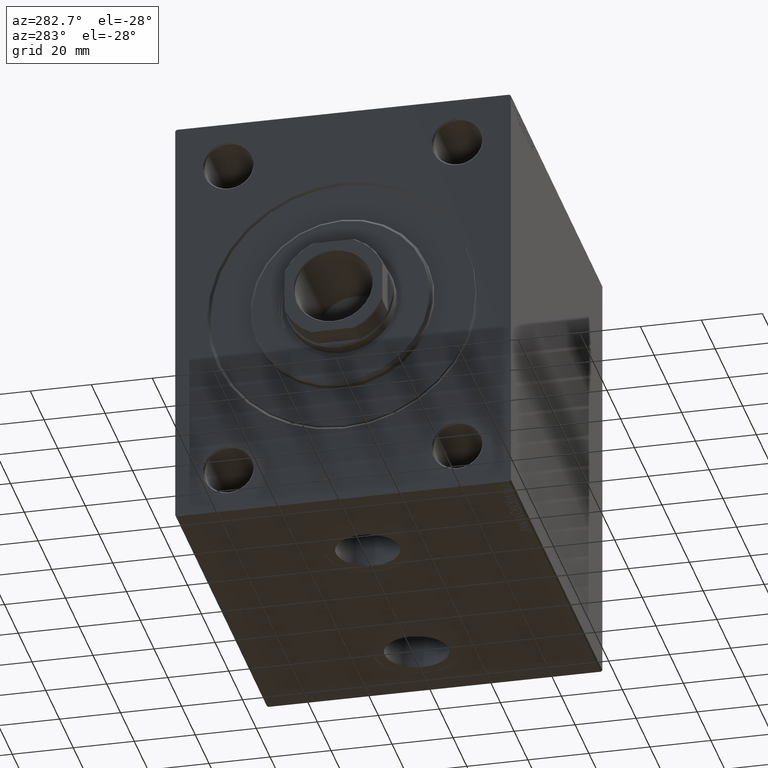
[diagram: clean part render]
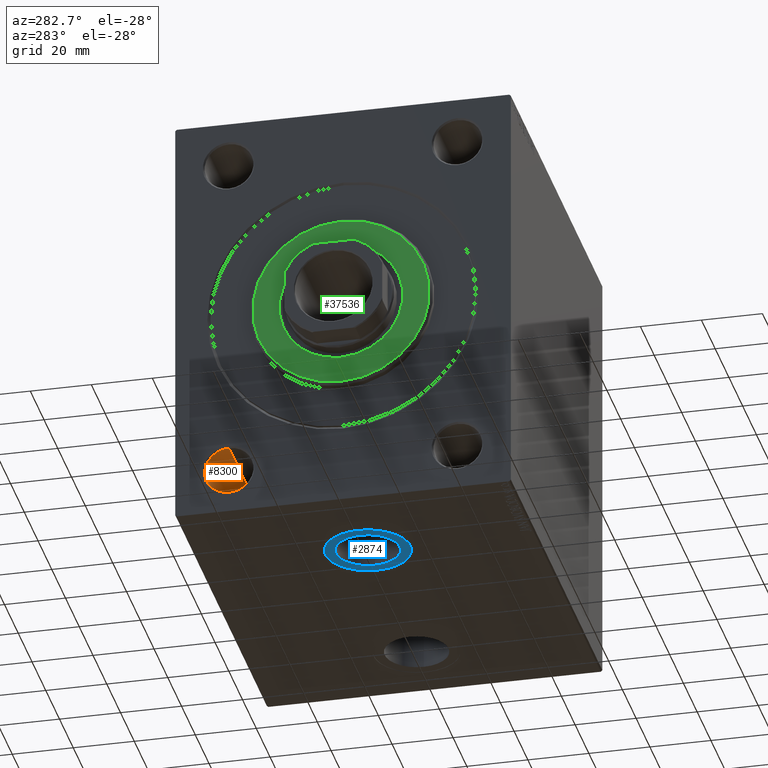
[diagram: same view with three faces highlighted in distinct colors, each labeled with its STEP entity id]
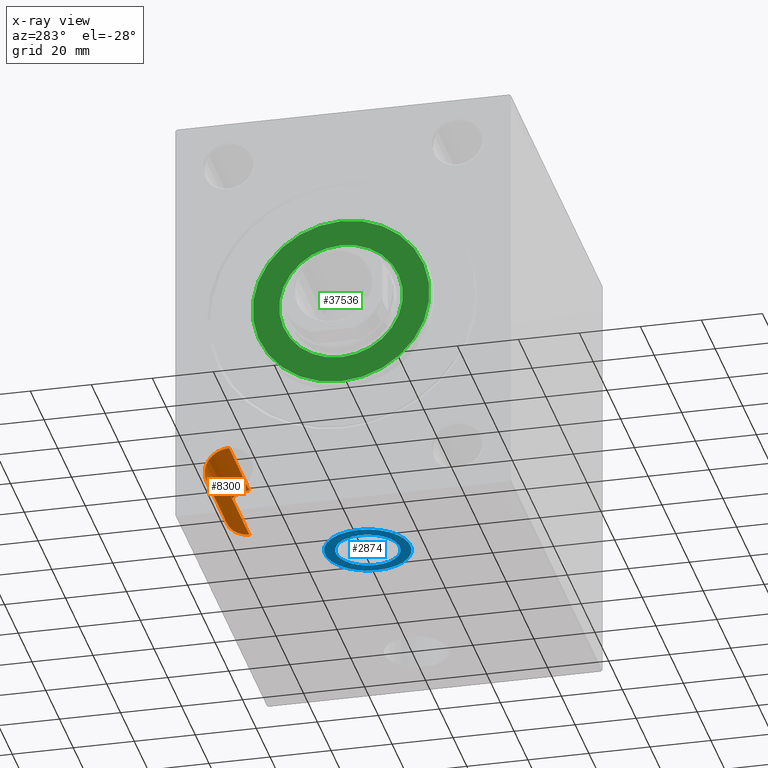
[diagram: x-ray of the same camera — body ghosted, the three highlighted faces saturated]
A machine part, auxiliary view with three faces highlighted in distinct colors.
The next image is the same camera in x-ray (body ghosted, the three faces saturated) — at least one of them is partly hidden behind the body in this view.
Their STEP definitions:

[orange] entity #8300 — the highlighted cylindrical surface (edge-blend (fillet) strip) has radius 8 mm, axis along (-1, -0, -0).
#233 = CARTESIAN_POINT ( 'NONE',  ( 0.000000000000000000, 37.50000000000000000, -47.00000000000000000 ) ) ;
#1916 = CARTESIAN_POINT ( 'NONE',  ( 0.5000000000000108802, 37.50000000000000000, -62.99999999999998579 ) ) ;
#2483 = DIRECTION ( 'NONE',  ( -1.000000000000000000, 0.000000000000000000, 0.000000000000000000 ) ) ;
#3197 = DIRECTION ( 'NONE',  ( 0.000000000000000000, 0.000000000000000000, 1.000000000000000000 ) ) ;
#4074 = DIRECTION ( 'NONE',  ( -1.000000000000000000, -0.000000000000000000, -0.000000000000000000 ) ) ;
#4101 = CARTESIAN_POINT ( 'NONE',  ( 30.00000000000000000, 37.50000000000000000, -62.99999999999998579 ) ) ;
#4639 = CARTESIAN_POINT ( 'NONE',  ( 0.000000000000000000, 37.50000000000000000, -62.99999999999998579 ) ) ;
#6309 = CIRCLE ( 'NONE', #17374, 7.999999999999992895 ) ;
#6699 = EDGE_CURVE ( 'NONE', #13617, #15246, #41845, .T. ) ;
#8300 = ADVANCED_FACE ( 'NONE', ( #21205 ), #39419, .F. ) ;
#9588 = ORIENTED_EDGE ( 'NONE', *, *, #25648, .F. ) ;
#10340 = DIRECTION ( 'NONE',  ( 0.000000000000000000, 0.000000000000000000, 1.000000000000000000 ) ) ;
#13593 = DIRECTION ( 'NONE',  ( -1.000000000000000000, -0.000000000000000000, -0.000000000000000000 ) ) ;
#13617 = VERTEX_POINT ( 'NONE', #43868 ) ;
#15246 = VERTEX_POINT ( 'NONE', #44846 ) ;
#15487 = VECTOR ( 'NONE', #15946, 1000.000000000000000 ) ;
#15946 = DIRECTION ( 'NONE',  ( -1.000000000000000000, -0.000000000000000000, -0.000000000000000000 ) ) ;
#16432 = VERTEX_POINT ( 'NONE', #4101 ) ;
#17176 = ORIENTED_EDGE ( 'NONE', *, *, #40708, .F. ) ;
#17374 = AXIS2_PLACEMENT_3D ( 'NONE', #38769, #13593, #3197 ) ;
#19630 = VECTOR ( 'NONE', #24314, 1000.000000000000000 ) ;
#21205 = FACE_OUTER_BOUND ( 'NONE', #25891, .T. ) ;
#21651 = CARTESIAN_POINT ( 'NONE',  ( 0.000000000000000000, 37.50000000000000000, -54.99999999999999289 ) ) ;
#23986 = CIRCLE ( 'NONE', #36493, 7.999999999999992895 ) ;
#24140 = AXIS2_PLACEMENT_3D ( 'NONE', #21651, #4074, #10340 ) ;
#24314 = DIRECTION ( 'NONE',  ( -1.000000000000000000, -0.000000000000000000, -0.000000000000000000 ) ) ;
#25648 = EDGE_CURVE ( 'NONE', #16432, #31095, #33519, .T. ) ;
#25891 = EDGE_LOOP ( 'NONE', ( #9588, #17176, #29725, #32936 ) ) ;
#29725 = ORIENTED_EDGE ( 'NONE', *, *, #6699, .T. ) ;
#31095 = VERTEX_POINT ( 'NONE', #1916 ) ;
#32936 = ORIENTED_EDGE ( 'NONE', *, *, #37859, .T. ) ;
#33519 = LINE ( 'NONE', #4639, #15487 ) ;
#34618 = DIRECTION ( 'NONE',  ( 0.000000000000000000, 0.000000000000000000, -1.000000000000000000 ) ) ;
#36493 = AXIS2_PLACEMENT_3D ( 'NONE', #45225, #2483, #34618 ) ;
#37859 = EDGE_CURVE ( 'NONE', #15246, #31095, #23986, .T. ) ;
#38769 = CARTESIAN_POINT ( 'NONE',  ( 30.00000000000000000, 37.50000000000000000, -54.99999999999999289 ) ) ;
#39419 = CYLINDRICAL_SURFACE ( 'NONE', #24140, 7.999999999999992895 ) ;
#40708 = EDGE_CURVE ( 'NONE', #13617, #16432, #6309, .T. ) ;
#41845 = LINE ( 'NONE', #233, #19630 ) ;
#43868 = CARTESIAN_POINT ( 'NONE',  ( 30.00000000000000000, 37.50000000000000000, -47.00000000000000000 ) ) ;
#44846 = CARTESIAN_POINT ( 'NONE',  ( 0.5000000000000108802, 37.50000000000000000, -47.00000000000000000 ) ) ;
#45225 = CARTESIAN_POINT ( 'NONE',  ( 0.5000000000000108802, 37.50000000000000000, -54.99999999999999289 ) ) ;

[blue] entity #2874 — the highlighted planar face has unit normal (0, 0, -1).
#1778 = AXIS2_PLACEMENT_3D ( 'NONE', #45741, #42263, #10622 ) ;
#2874 = ADVANCED_FACE ( 'NONE', ( #4365, #35127 ), #31663, .T. ) ;
#4365 = FACE_BOUND ( 'NONE', #5131, .T. ) ;
#4375 = AXIS2_PLACEMENT_3D ( 'NONE', #39265, #35367, #11767 ) ;
#5131 = EDGE_LOOP ( 'NONE', ( #33396, #15231 ) ) ;
#7021 = ORIENTED_EDGE ( 'NONE', *, *, #18941, .T. ) ;
#8370 = VERTEX_POINT ( 'NONE', #8904 ) ;
#8449 = VERTEX_POINT ( 'NONE', #15835 ) ;
#8893 = AXIS2_PLACEMENT_3D ( 'NONE', #32104, #35794, #17543 ) ;
#8904 = CARTESIAN_POINT ( 'NONE',  ( 46.47999999999999687, 5.489560609482857396E-15, -69.90000000000000568 ) ) ;
#10622 = DIRECTION ( 'NONE',  ( -1.000000000000000000, 0.000000000000000000, -0.000000000000000000 ) ) ;
#11767 = DIRECTION ( 'NONE',  ( -1.000000000000000000, 0.000000000000000000, 0.000000000000000000 ) ) ;
#13222 = CIRCLE ( 'NONE', #4375, 10.48000000000000043 ) ;
#14253 = CARTESIAN_POINT ( 'NONE',  ( 25.51999999999999602, 4.206130763976431907E-15, -69.90000000000000568 ) ) ;
#15231 = ORIENTED_EDGE ( 'NONE', *, *, #45693, .F. ) ;
#15835 = CARTESIAN_POINT ( 'NONE',  ( 22.00000000000000000, 4.206130763976431907E-15, -69.90000000000000568 ) ) ;
#17543 = DIRECTION ( 'NONE',  ( -1.000000000000000000, 0.000000000000000000, 0.000000000000000000 ) ) ;
#18941 = EDGE_CURVE ( 'NONE', #8449, #45475, #37574, .T. ) ;
#19011 = AXIS2_PLACEMENT_3D ( 'NONE', #25779, #19285, #22768 ) ;
#19285 = DIRECTION ( 'NONE',  ( 0.000000000000000000, 0.000000000000000000, -1.000000000000000000 ) ) ;
#19784 = EDGE_CURVE ( 'NONE', #36203, #8370, #13222, .T. ) ;
#20529 = DIRECTION ( 'NONE',  ( 0.000000000000000000, 0.000000000000000000, -1.000000000000000000 ) ) ;
#22606 = ORIENTED_EDGE ( 'NONE', *, *, #23112, .T. ) ;
#22768 = DIRECTION ( 'NONE',  ( -1.000000000000000000, 0.000000000000000000, 0.000000000000000000 ) ) ;
#23112 = EDGE_CURVE ( 'NONE', #45475, #8449, #34742, .T. ) ;
#24427 = CARTESIAN_POINT ( 'NONE',  ( 50.00000000000000000, 5.920636282782727137E-15, -69.90000000000000568 ) ) ;
#25779 = CARTESIAN_POINT ( 'NONE',  ( 36.00000000000000000, 4.206130763976431907E-15, -69.90000000000000568 ) ) ;
#31663 = PLANE ( 'NONE',  #1778 ) ;
#32104 = CARTESIAN_POINT ( 'NONE',  ( 36.00000000000000000, 4.206130763976431907E-15, -69.90000000000000568 ) ) ;
#33396 = ORIENTED_EDGE ( 'NONE', *, *, #19784, .F. ) ;
#33928 = DIRECTION ( 'NONE',  ( -1.000000000000000000, 0.000000000000000000, 0.000000000000000000 ) ) ;
#34742 = CIRCLE ( 'NONE', #8893, 13.99999999999999822 ) ;
#35127 = FACE_OUTER_BOUND ( 'NONE', #36892, .T. ) ;
#35367 = DIRECTION ( 'NONE',  ( 0.000000000000000000, 0.000000000000000000, -1.000000000000000000 ) ) ;
#35794 = DIRECTION ( 'NONE',  ( 0.000000000000000000, 0.000000000000000000, -1.000000000000000000 ) ) ;
#36203 = VERTEX_POINT ( 'NONE', #14253 ) ;
#36892 = EDGE_LOOP ( 'NONE', ( #7021, #22606 ) ) ;
#37392 = CARTESIAN_POINT ( 'NONE',  ( 36.00000000000000000, 4.206130763976431907E-15, -69.90000000000000568 ) ) ;
#37574 = CIRCLE ( 'NONE', #43469, 13.99999999999999822 ) ;
#39265 = CARTESIAN_POINT ( 'NONE',  ( 36.00000000000000000, 4.206130763976431907E-15, -69.90000000000000568 ) ) ;
#42263 = DIRECTION ( 'NONE',  ( 0.000000000000000000, 0.000000000000000000, -1.000000000000000000 ) ) ;
#43469 = AXIS2_PLACEMENT_3D ( 'NONE', #37392, #20529, #33928 ) ;
#44829 = CIRCLE ( 'NONE', #19011, 10.48000000000000043 ) ;
#45475 = VERTEX_POINT ( 'NONE', #24427 ) ;
#45693 = EDGE_CURVE ( 'NONE', #8370, #36203, #44829, .T. ) ;
#45741 = CARTESIAN_POINT ( 'NONE',  ( 0.000000000000000000, 0.000000000000000000, -69.90000000000000568 ) ) ;

[green] entity #37536 — the highlighted planar face has unit normal (-1, 0, 0).
#1052 = DIRECTION ( 'NONE',  ( 1.000000000000000000, -0.000000000000000000, 0.000000000000000000 ) ) ;
#2071 = CARTESIAN_POINT ( 'NONE',  ( 3.000000000000000000, 3.612708057484691604E-15, -28.99999999999999289 ) ) ;
#4559 = AXIS2_PLACEMENT_3D ( 'NONE', #17155, #45127, #13465 ) ;
#4780 = EDGE_LOOP ( 'NONE', ( #33677, #6611 ) ) ;
#5281 = CIRCLE ( 'NONE', #4559, 20.25000000000000000 ) ;
#6611 = ORIENTED_EDGE ( 'NONE', *, *, #26116, .F. ) ;
#7233 = CARTESIAN_POINT ( 'NONE',  ( 3.000000000000000000, 0.000000000000000000, 0.000000000000000000 ) ) ;
#8004 = CARTESIAN_POINT ( 'NONE',  ( 3.000000000000000000, 0.000000000000000000, 0.000000000000000000 ) ) ;
#8843 = FACE_OUTER_BOUND ( 'NONE', #34058, .T. ) ;
#11466 = DIRECTION ( 'NONE',  ( 0.000000000000000000, 0.000000000000000000, -1.000000000000000000 ) ) ;
#11715 = CIRCLE ( 'NONE', #37538, 28.99999999999999289 ) ;
#13465 = DIRECTION ( 'NONE',  ( 0.000000000000000000, 0.000000000000000000, -1.000000000000000000 ) ) ;
#15075 = AXIS2_PLACEMENT_3D ( 'NONE', #15764, #40033, #37035 ) ;
#15764 = CARTESIAN_POINT ( 'NONE',  ( 3.000000000000000000, 0.000000000000000000, 0.000000000000000000 ) ) ;
#16606 = ORIENTED_EDGE ( 'NONE', *, *, #18278, .T. ) ;
#17155 = CARTESIAN_POINT ( 'NONE',  ( 3.000000000000000000, 0.000000000000000000, 0.000000000000000000 ) ) ;
#17635 = AXIS2_PLACEMENT_3D ( 'NONE', #43171, #18688, #22633 ) ;
#18278 = EDGE_CURVE ( 'NONE', #18521, #23802, #11715, .T. ) ;
#18521 = VERTEX_POINT ( 'NONE', #35233 ) ;
#18688 = DIRECTION ( 'NONE',  ( 1.000000000000000000, 0.000000000000000000, 0.000000000000000000 ) ) ;
#18840 = EDGE_CURVE ( 'NONE', #42971, #30768, #30227, .T. ) ;
#19162 = AXIS2_PLACEMENT_3D ( 'NONE', #7233, #39336, #21801 ) ;
#20697 = EDGE_CURVE ( 'NONE', #23802, #18521, #25815, .T. ) ;
#21801 = DIRECTION ( 'NONE',  ( 0.000000000000000000, 0.000000000000000000, -1.000000000000000000 ) ) ;
#22270 = PLANE ( 'NONE',  #15075 ) ;
#22499 = FACE_BOUND ( 'NONE', #4780, .T. ) ;
#22633 = DIRECTION ( 'NONE',  ( 0.000000000000000000, 0.000000000000000000, -1.000000000000000000 ) ) ;
#22699 = ORIENTED_EDGE ( 'NONE', *, *, #20697, .T. ) ;
#23802 = VERTEX_POINT ( 'NONE', #2071 ) ;
#25815 = CIRCLE ( 'NONE', #19162, 28.99999999999999289 ) ;
#26116 = EDGE_CURVE ( 'NONE', #30768, #42971, #5281, .T. ) ;
#30227 = CIRCLE ( 'NONE', #17635, 20.25000000000000000 ) ;
#30322 = CARTESIAN_POINT ( 'NONE',  ( 3.000000000000000000, 0.000000000000000000, -20.25000000000000000 ) ) ;
#30768 = VERTEX_POINT ( 'NONE', #31660 ) ;
#31660 = CARTESIAN_POINT ( 'NONE',  ( 3.000000000000000000, 2.479909768273390300E-15, 20.25000000000000000 ) ) ;
#33677 = ORIENTED_EDGE ( 'NONE', *, *, #18840, .F. ) ;
#34058 = EDGE_LOOP ( 'NONE', ( #16606, #22699 ) ) ;
#35233 = CARTESIAN_POINT ( 'NONE',  ( 3.000000000000000000, 0.000000000000000000, 28.99999999999999289 ) ) ;
#37035 = DIRECTION ( 'NONE',  ( 0.000000000000000000, 0.000000000000000000, -1.000000000000000000 ) ) ;
#37536 = ADVANCED_FACE ( 'NONE', ( #8843, #22499 ), #22270, .T. ) ;
#37538 = AXIS2_PLACEMENT_3D ( 'NONE', #8004, #1052, #11466 ) ;
#39336 = DIRECTION ( 'NONE',  ( 1.000000000000000000, -0.000000000000000000, 0.000000000000000000 ) ) ;
#40033 = DIRECTION ( 'NONE',  ( 1.000000000000000000, -0.000000000000000000, 0.000000000000000000 ) ) ;
#42971 = VERTEX_POINT ( 'NONE', #30322 ) ;
#43171 = CARTESIAN_POINT ( 'NONE',  ( 3.000000000000000000, 0.000000000000000000, 0.000000000000000000 ) ) ;
#45127 = DIRECTION ( 'NONE',  ( 1.000000000000000000, 0.000000000000000000, 0.000000000000000000 ) ) ;